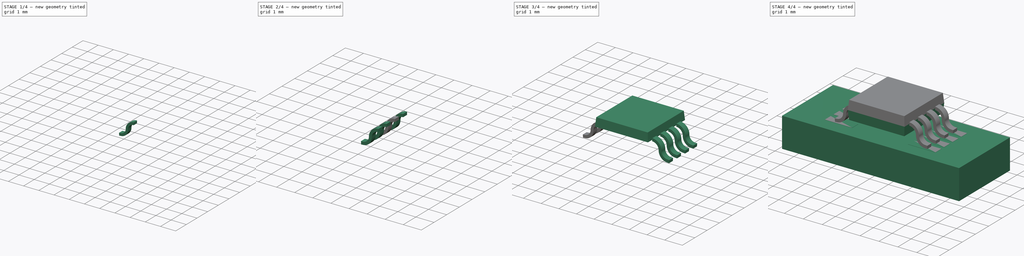
[diagram: build sequence overview — one tinted view per stage of 4, left to right]
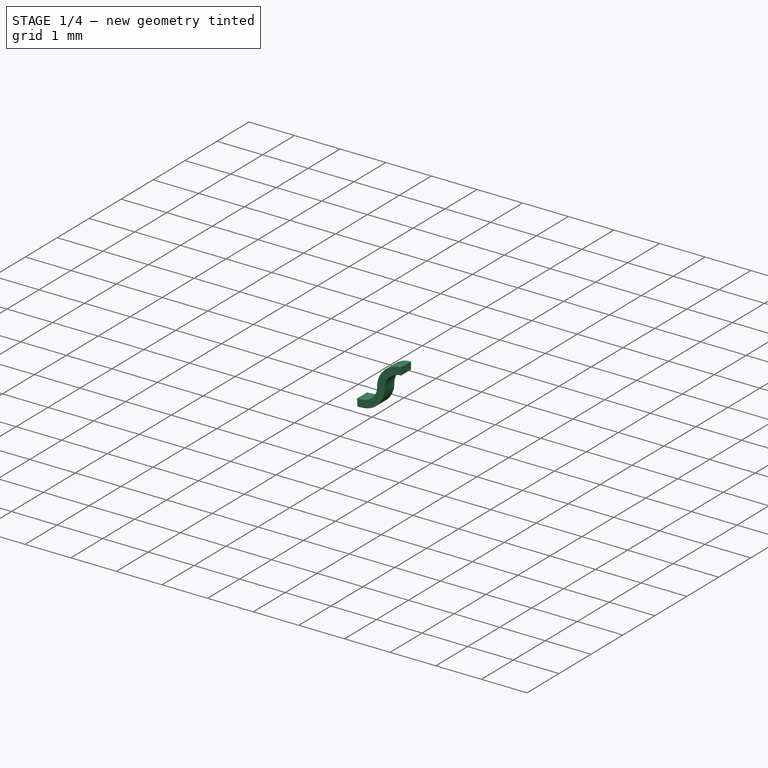
[diagram: stage 1 of 4 — iso view after this stage's code; geometry added in this stage tinted green]
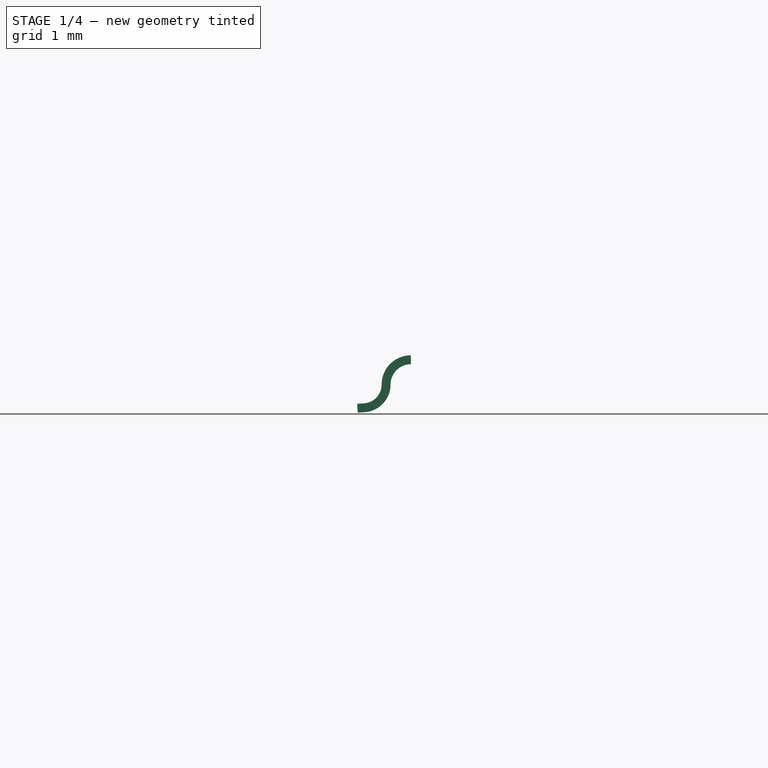
[diagram: stage 1 of 4 — front view after this stage's code; geometry added in this stage tinted green]
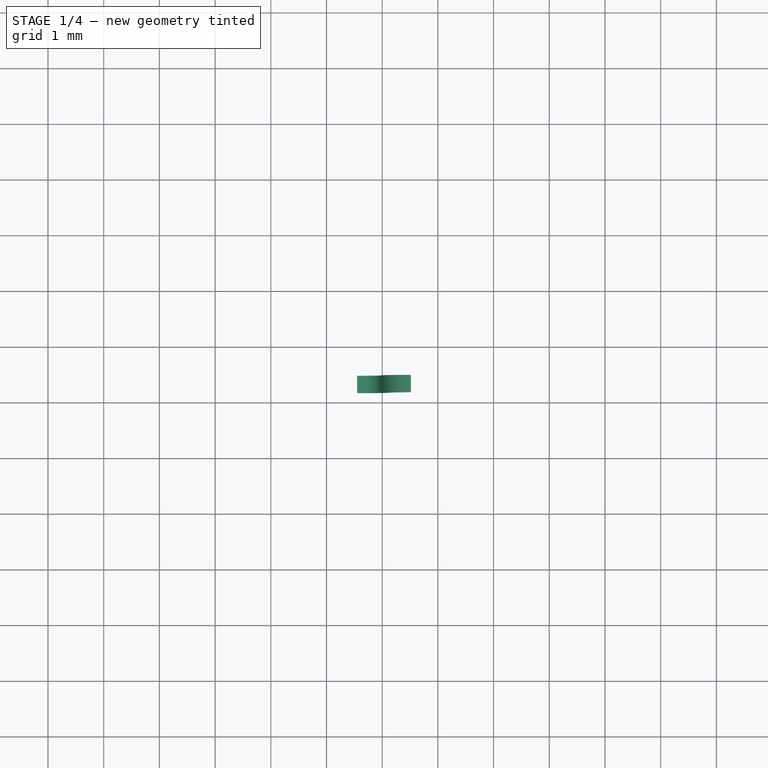
[diagram: stage 1 of 4 — top view after this stage's code; geometry added in this stage tinted green]
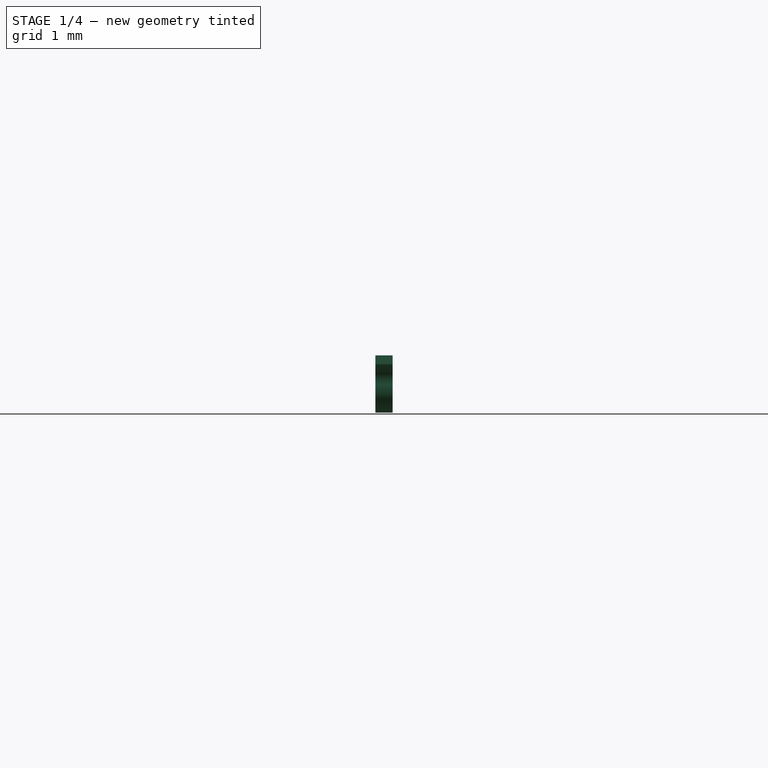
[diagram: stage 1 of 4 — right view after this stage's code; geometry added in this stage tinted green]
FCSTD DOCUMENT  (FreeCAD 0.19R22039 (Git))
Label: MSOP-8
License: All rights reserved
LicenseURL: http://en.wikipedia.org/wiki/All_rights_reserved
objects: PartDesign::Body×6, PartDesign::FeatureBase×4, Part::Compound×3, Part::FeaturePython×2, Sketcher::SketchObject×2, PartDesign::Pad×2, App::DocumentObjectGroup×1, PartDesign::Draft×1, Part::Mirroring×1, App::Part×1, Part::Feature×1
note: 25 computed .brp shape members not serialized (recipe doc carries the construction recipe); baked Part::Feature solids carry a one-line shape summary decoded from their .brp

FEATURE [App::DocumentObjectGroup] _PIC12F1571_MSOP8__fp
  Group = -> [TopPads,newPCB]
FEATURE [Sketcher::SketchObject] Sketch
  MapMode = 5
  Placement = pos=(0,0,0) rot=(1,0,0;1.5708rad)
  Support = -> [XZ_Plane001]
  expr: Constraints[21] = 4.9 / 2
  sketch-geometry (9):
    g0: LineSegment StartX=-2.45 StartY=0.15961 StartZ=0 EndX=-2.43884 EndY=0 EndZ=0
    g1: LineSegment StartX=-2.43884 StartY=0 StartZ=0 EndX=-2.3127 EndY=0.00882063 EndZ=0
    g2: LineSegment StartX=-2.45 StartY=0.15961 StartZ=0 EndX=-2.32386 EndY=0.168431 EndZ=0
    g3: ArcOfCircle CenterX=-2.34739 CenterY=0.505004 CenterZ=0 NormalX=0 NormalY=0 NormalZ=1 AngleXU=0 Radius=0.337395 StartAngle=4.7822 EndAngle=6.28319
    g4: ArcOfCircle CenterX=-1.485 CenterY=0.505004 CenterZ=0 NormalX=0 NormalY=0 NormalZ=1 AngleXU=0 Radius=0.524996 StartAngle=1.57079 EndAngle=3.14159
    g5: ArcOfCircle CenterX=-2.34739 CenterY=0.505004 CenterZ=0 NormalX=0 NormalY=0 NormalZ=1 AngleXU=0 Radius=0.497395 StartAngle=4.7822 EndAngle=6.28319
    g6: ArcOfCircle CenterX=-1.485 CenterY=0.505004 CenterZ=0 NormalX=0 NormalY=0 NormalZ=1 AngleXU=0 Radius=0.364996 StartAngle=1.57079 EndAngle=3.14159
    g7: LineSegment StartX=-1.485 StartY=1.03 StartZ=0 EndX=-1.485 EndY=0.87 EndZ=0
    g8: GeomPoint X=-1.485 Y=0.95 Z=0
  constraints (27):
    c: PointOnObject(g0,g-1)
    c: Coincident(g1,g0)
    c: Coincident(g2,g0)
    c: Perpendicular(g0,g1)
    c: Parallel(g2,g1)
    c: Coincident(g3,g2)
    c: Coincident(g4,g3)
    c: Coincident(g5,g1)
    c: Coincident(g6,g5)
    c: Coincident(g7,g4)
    c: Coincident(g7,g6)
    c: Vertical(g7)
    c: Angle(g-1,g1) = 0.0698132
    c: DistanceX(g0,g6) = 0.965
    c: DistanceX(g0,g5) = 0.6
    c: Coincident(g3,g5)
    c: Coincident(g4,g6)
    c: Tangent(g5,g6) = 1.5708
    c: Tangent(g3,g4) = 1.5708
    c: Tangent(g1,g5) = -1.5708
    c: Tangent(g2,g3) = -1.5708
    c: DistanceX(g0,g-1) = 2.45
    c: Symmetric(g4,g6,g8)
    c: DistanceY(g-1,g8) = 0.95
    c: Distance(g0) = 0.16
    c: DistanceY(g3,g4) = 0
    c: Distance(g7) = 0.16
FEATURE [PartDesign::Pad] Pad
  Length = 0.31
  Length2 = 100
  Midplane = true
  Placement = pos=(0,0,0) rot=(1,0,0;1.5708rad)
  Profile = -> Sketch
  Type = 0
FEATURE [PartDesign::FeatureBase] Clone
  BaseFeature = -> Body
  Placement = pos=(0,0.98,0) rot=(0,0,1;0rad)
FEATURE [PartDesign::Body] Body002  label="leg"
  BaseFeature = -> Body
  Group = -> [Clone]
  Origin = -> Origin003
  Placement = pos=(0,-0.65,0) rot=(0,0,1;0rad)
  Tip = -> Clone
FEATURE [PartDesign::FeatureBase] Clone001
  BaseFeature = -> Body002
  Placement = pos=(0,-0.65,0) rot=(0,0,1;0rad)
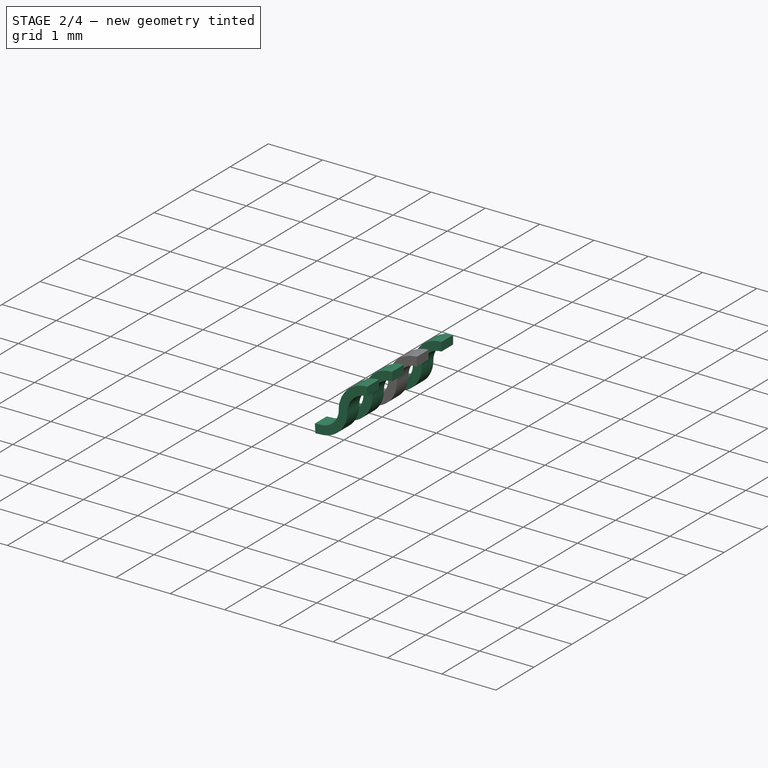
[diagram: stage 2 of 4 — iso view after this stage's code; geometry added in this stage tinted green]
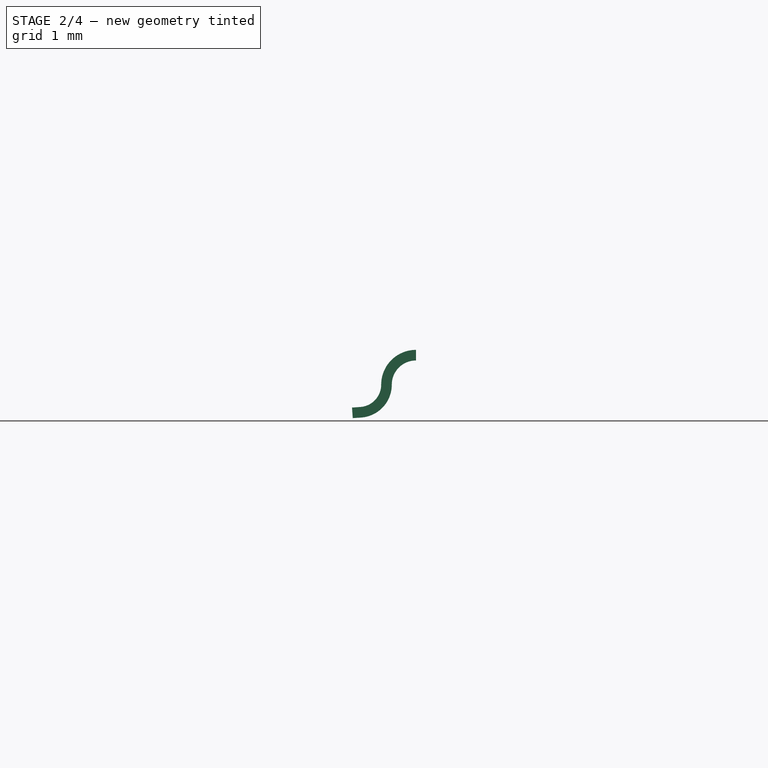
[diagram: stage 2 of 4 — front view after this stage's code; geometry added in this stage tinted green]
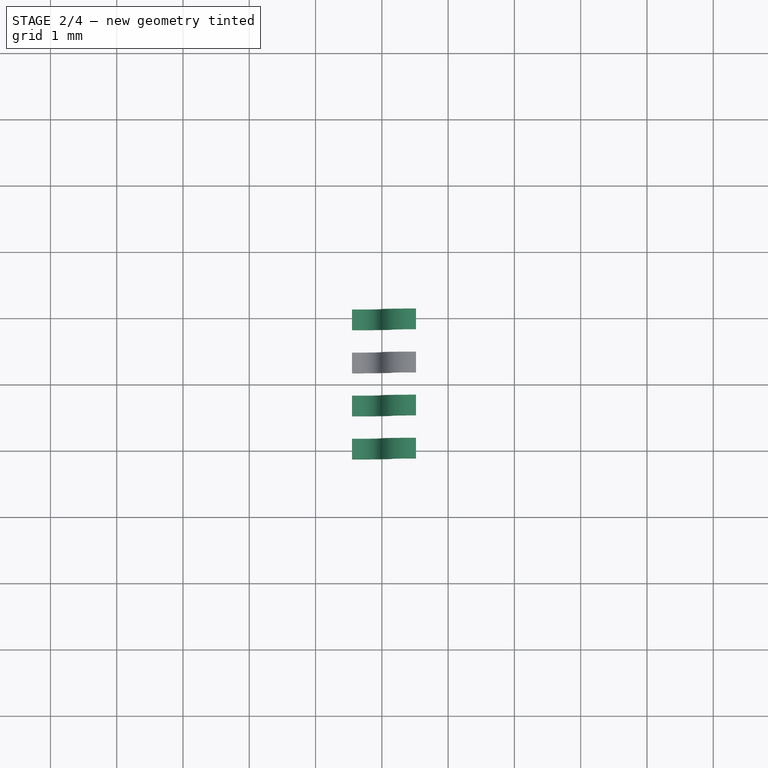
[diagram: stage 2 of 4 — top view after this stage's code; geometry added in this stage tinted green]
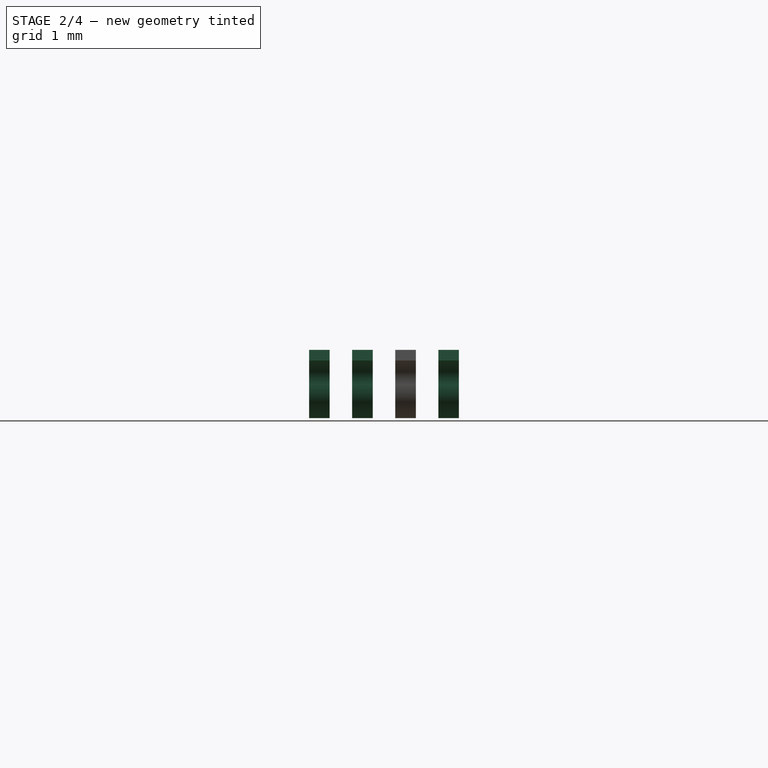
[diagram: stage 2 of 4 — right view after this stage's code; geometry added in this stage tinted green]
FEATURE [PartDesign::Body] Body003  label="leg001"
  BaseFeature = -> Body002
  Group = -> [Clone001]
  Origin = -> Origin004
  Placement = pos=(0,-0.65,0) rot=(0,0,1;0rad)
  Tip = -> Clone001
FEATURE [PartDesign::FeatureBase] Clone002
  BaseFeature = -> Body003
  Placement = pos=(0,-0.65,0) rot=(0,0,1;0rad)
FEATURE [PartDesign::Body] Body004  label="leg002"
  BaseFeature = -> Body003
  Group = -> [Clone002]
  Origin = -> Origin005
  Placement = pos=(0,-0.65,0) rot=(0,0,1;0rad)
  Tip = -> Clone002
FEATURE [App::Part] Part
  Group = -> [Body001,Body002,Body003,Body004,Body]
  Origin = -> Origin
FEATURE [Part::Compound] Compound
  Links = -> [Body,Body004,Body003,Body002]
FEATURE [PartDesign::FeatureBase] Clone003
  BaseFeature = -> Compound
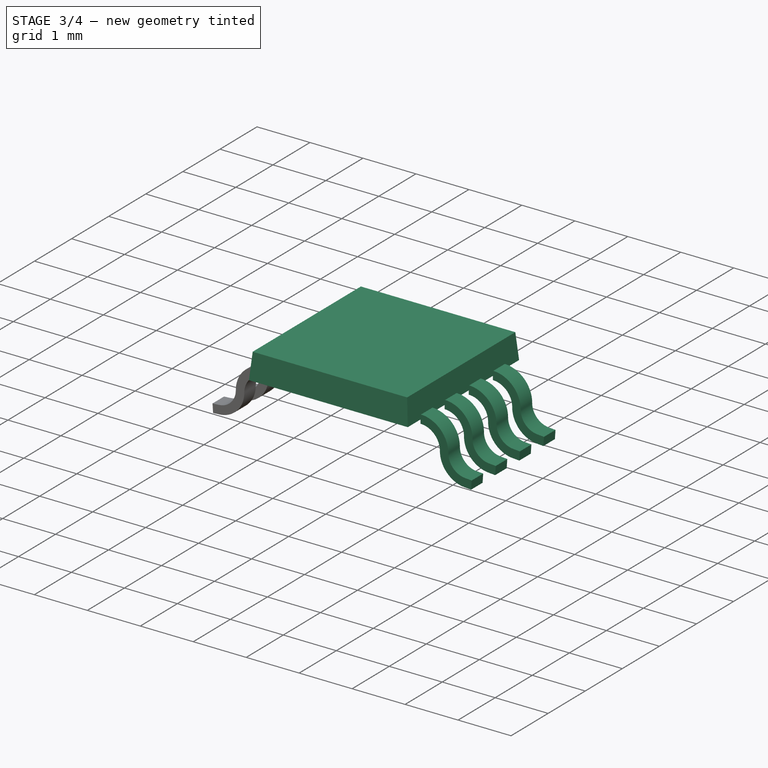
[diagram: stage 3 of 4 — iso view after this stage's code; geometry added in this stage tinted green]
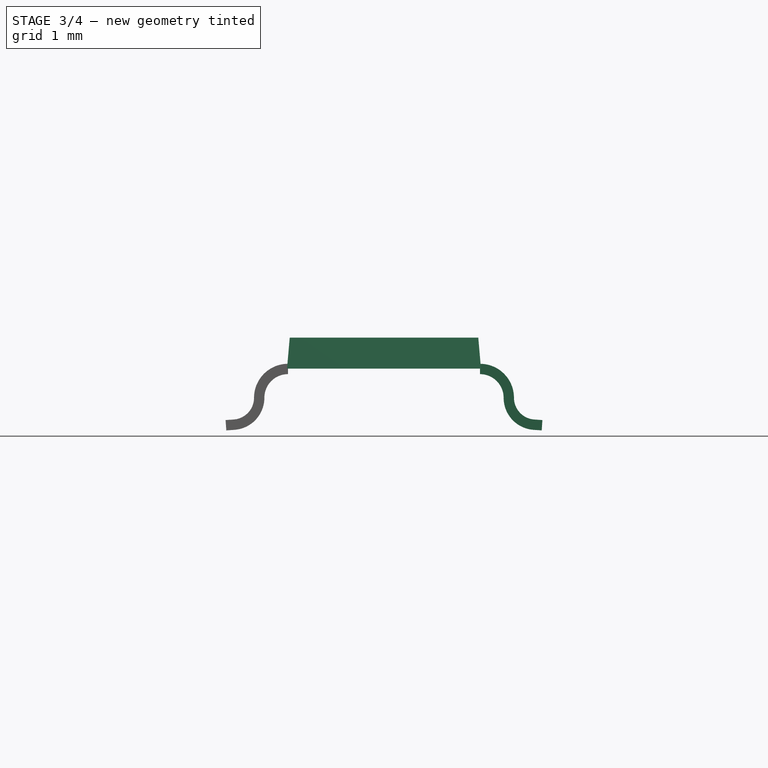
[diagram: stage 3 of 4 — front view after this stage's code; geometry added in this stage tinted green]
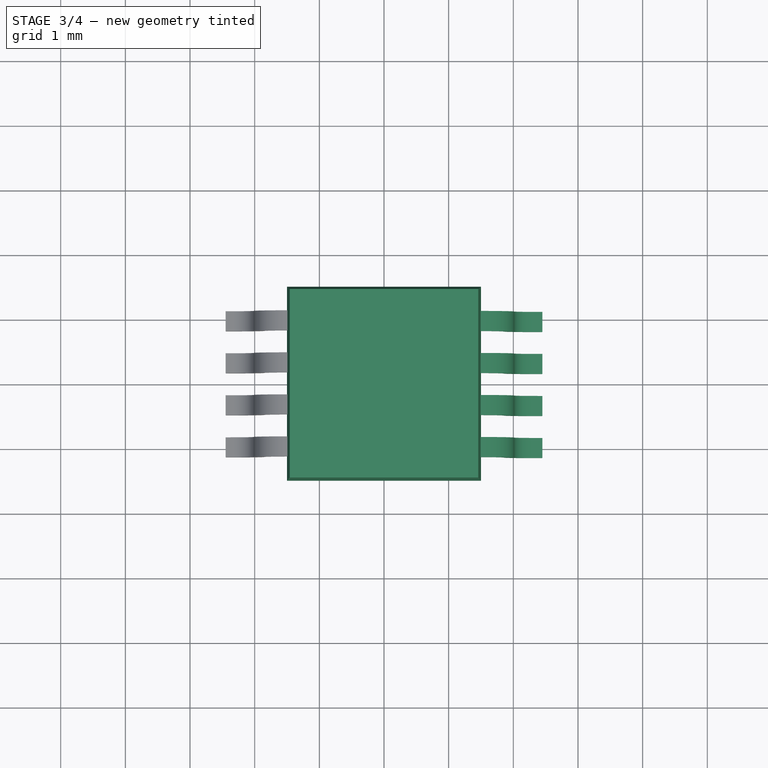
[diagram: stage 3 of 4 — top view after this stage's code; geometry added in this stage tinted green]
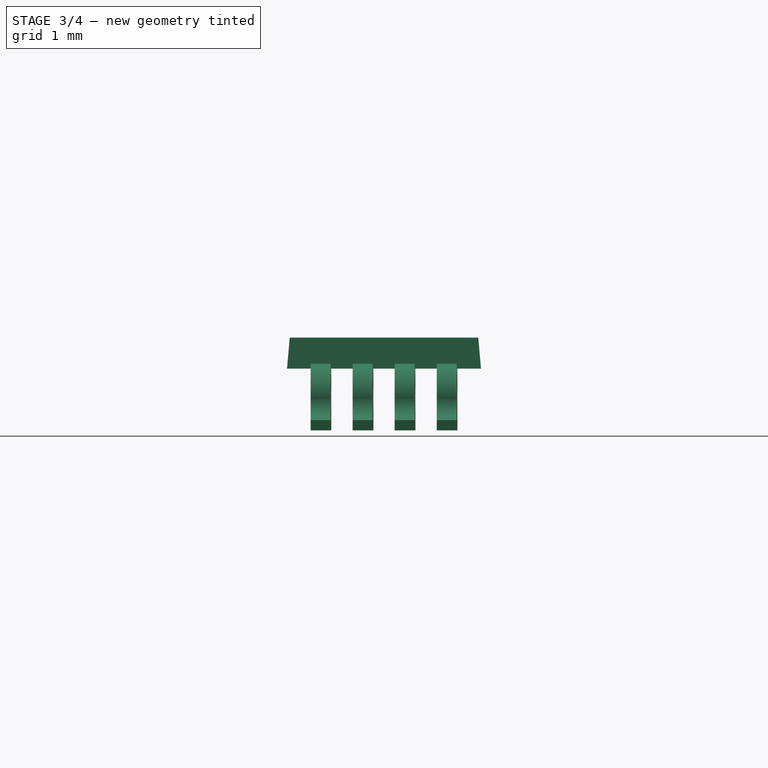
[diagram: stage 3 of 4 — right view after this stage's code; geometry added in this stage tinted green]
FEATURE [PartDesign::Body] Body  label="pins"
  Group = -> [Sketch,Pad]
  Origin = -> Origin001
  Placement = pos=(0,0.98,0) rot=(0,0,1;0rad)
  Tip = -> Pad
FEATURE [Sketcher::SketchObject] Sketch001
  AttachmentOffset = pos=(0,0,0.475) rot=(0,0,1;0rad)
  MapMode = 5
  Placement = pos=(0,0,0.475) rot=(0,0,1;0rad)
  Support = -> [XY_Plane002]
  sketch-geometry (4):
    g0: LineSegment StartX=-1.5 StartY=1.5 StartZ=0 EndX=1.5 EndY=1.5 EndZ=0
    g1: LineSegment StartX=1.5 StartY=1.5 StartZ=0 EndX=1.5 EndY=-1.5 EndZ=0
    g2: LineSegment StartX=1.5 StartY=-1.5 StartZ=0 EndX=-1.5 EndY=-1.5 EndZ=0
    g3: LineSegment StartX=-1.5 StartY=-1.5 StartZ=0 EndX=-1.5 EndY=1.5 EndZ=0
  constraints (10):
    c: Coincident(g0,g1)
    c: Coincident(g1,g2)
    c: Coincident(g2,g3)
    c: Coincident(g3,g0)
    c: Horizontal(g0)
    c: Vertical(g1)
    c: DistanceY(g1,g1) = 3
    c: DistanceX(g0,g0) = 3
    c: Symmetric(g2,g1,g-2)
    c: Symmetric(g0,g2,g-1)
FEATURE [PartDesign::Pad] Pad001
  Length = 0.48
  Length2 = 100
  Profile = -> Sketch001
  Type = 0
FEATURE [PartDesign::Draft] Draft
  Angle = 5
  Base = -> Pad001 [Face2,Face1,Face4,Face3]
  BaseFeature = -> Pad001
  NeutralPlane = -> Pad001 [Face6]
  SupportTransform = false
FEATURE [PartDesign::Body] Body001  label="body"
  Group = -> [Sketch001,Pad001,Draft]
  Origin = -> Origin002
  Tip = -> Draft
FEATURE [Part::Mirroring] Part__Mirroring  label="Draft (Mirror #1)"
  Base = (0,0,0.955)
  Normal = (0,0,1)
  Source = -> Draft
FEATURE [Part::Compound] Compound003  label="legs"
  Links = -> [Compound,Body005]
FEATURE [Part::Feature] Shape  label="MSOP-8"
  shape: bbox 4.9 x 3 x 1.435 mm, 92 faces, 10 solids (baked)
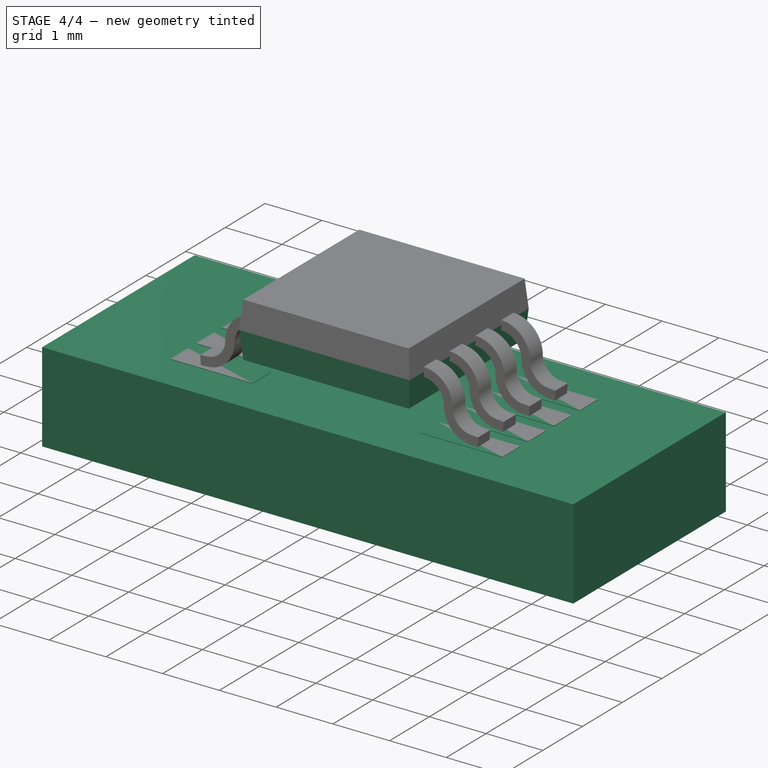
[diagram: stage 4 of 4 — iso view after this stage's code; geometry added in this stage tinted green]
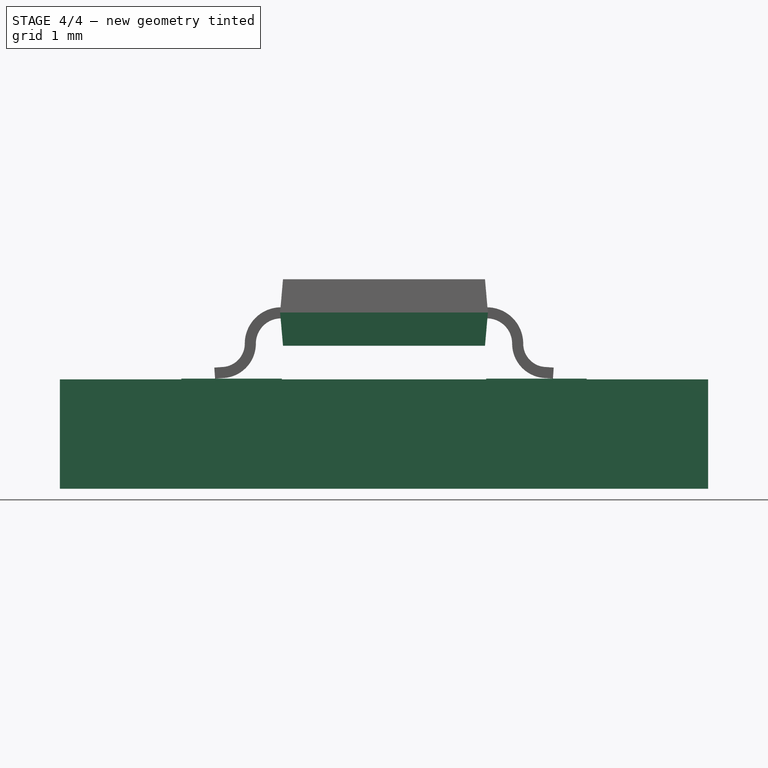
[diagram: stage 4 of 4 — front view after this stage's code; geometry added in this stage tinted green]
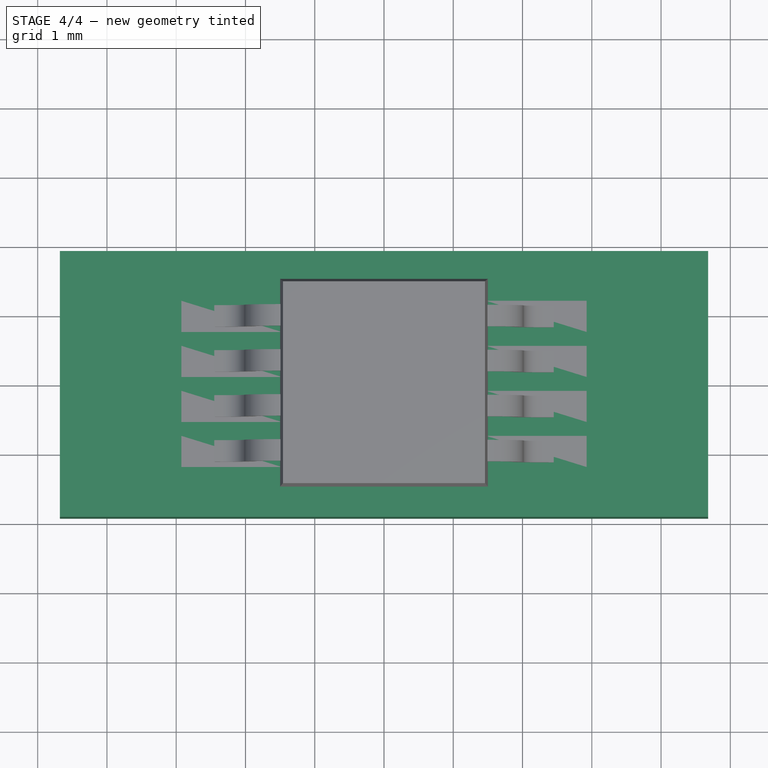
[diagram: stage 4 of 4 — top view after this stage's code; geometry added in this stage tinted green]
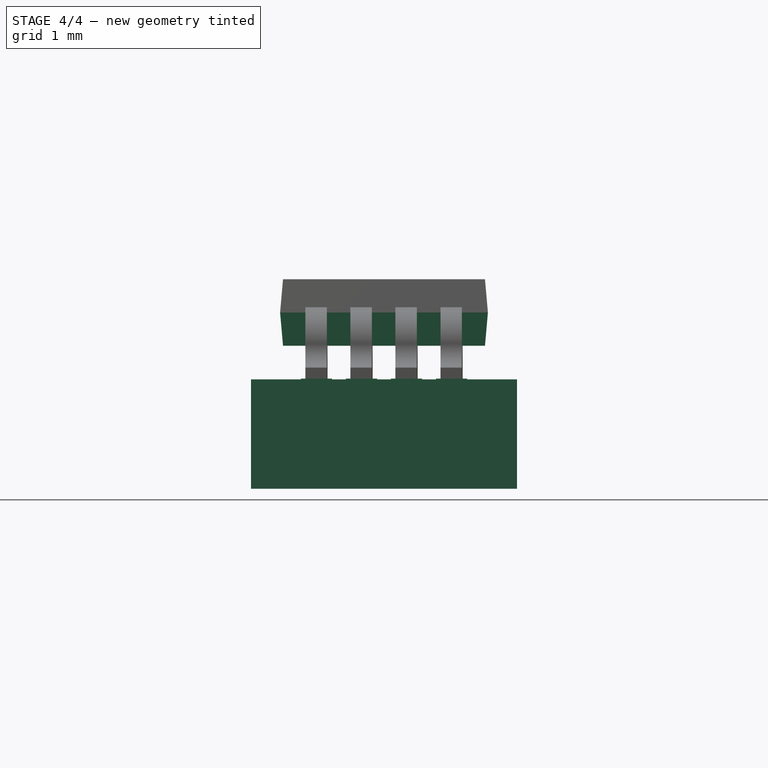
[diagram: stage 4 of 4 — right view after this stage's code; geometry added in this stage tinted green]
FEATURE [Part::FeaturePython] TopPads  # a2plus imported part (geometry in sourceFile) (typed FeaturePython)
  fixedPosition = true
FEATURE [Part::FeaturePython] newPCB  label="Pcb"  # a2plus imported part (geometry in sourceFile) (typed FeaturePython)
  fixedPosition = true
FEATURE [PartDesign::Body] Body005
  BaseFeature = -> Compound
  Group = -> [Clone003]
  Origin = -> Origin006
  Placement = pos=(0,0,0) rot=(0,0,1;3.14159rad)
  Tip = -> Clone003
FEATURE [Part::Compound] Compound002  label="Body"
  Links = -> [Body001,Part__Mirroring]
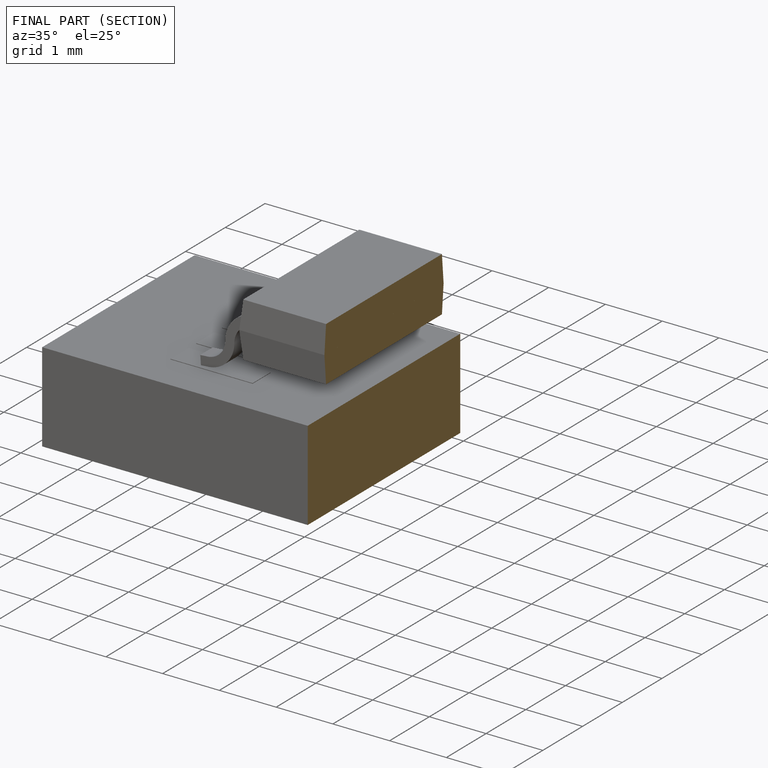
[diagram: finished part — half-section view (interior)]
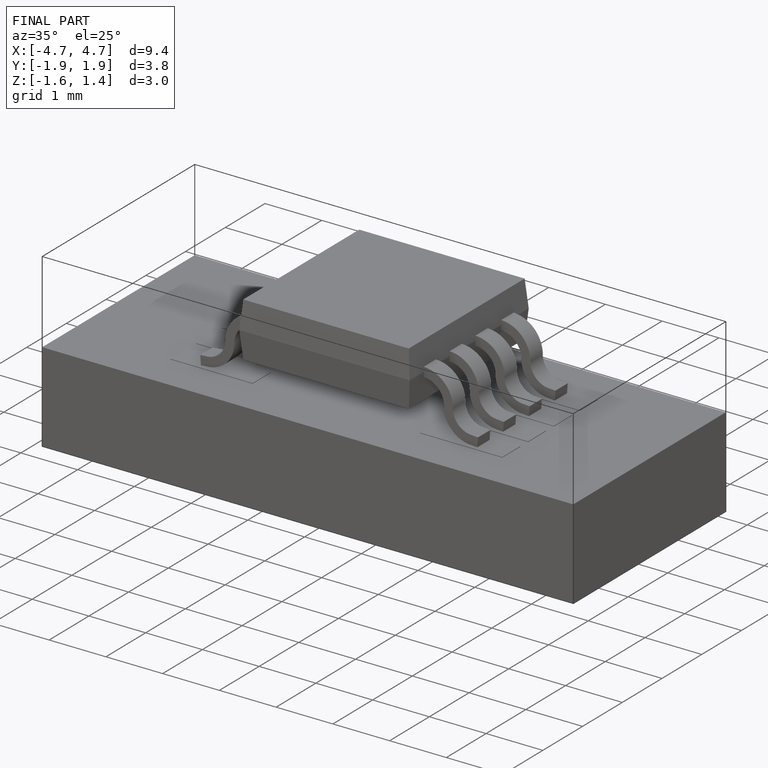
[diagram: finished part — iso view with bounding-box wireframe]
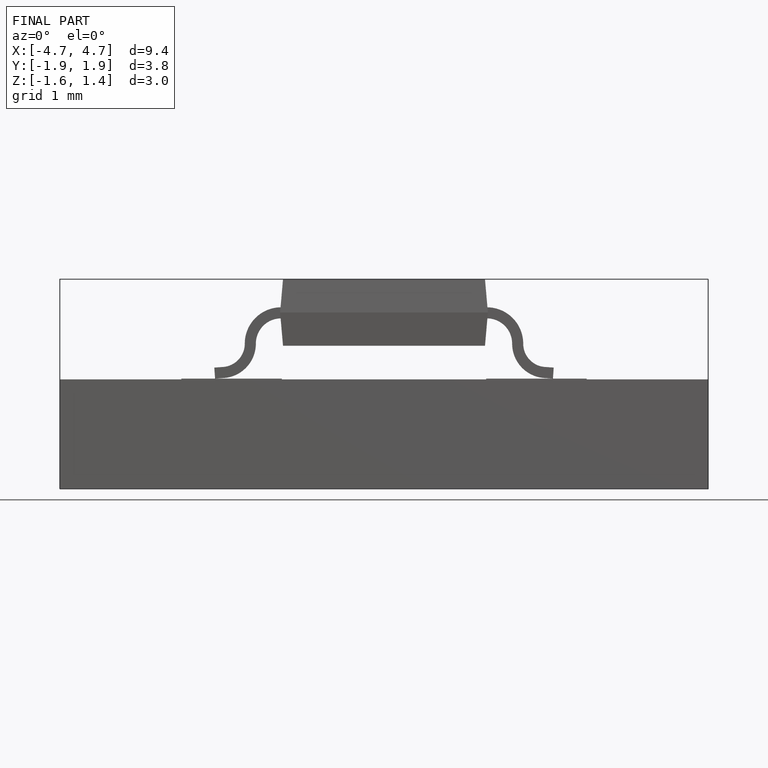
[diagram: finished part — front view with bounding-box wireframe]
